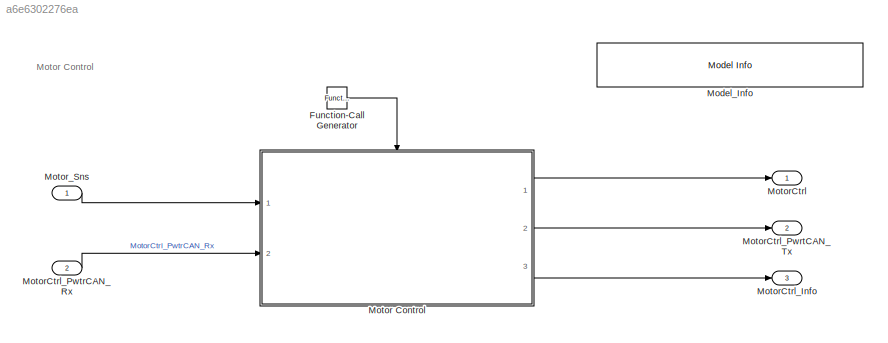
MODEL slx_a6e6302276ea
KIND model
CONFIG AbsTol = auto
CONFIG EnableMultiTasking = on
CONFIG FixedStep = sampletime
CONFIG MaxStep = auto
CONFIG MinStep = auto
CONFIG PreLoadFcn = MotorCtrl_V1_PreLoad
CONFIG RelTol = 1e-3
CONFIG SampleTimeConstraint = Unconstrained
CONFIG Solver = FixedStepDiscrete
CONFIG SolverName = FixedStepDiscrete
CONFIG StartTime = 0.0
CONFIG StopTime = 10.0
BLOCK [Reference] Function-Call Generator  REF=simulink/Ports &
Subsystems/Function-Call
Generator
  AttributesFormatString = <sample_time=%<sample_time>>
  Ports = [0, 1]
  SourceBlock = simulink/Ports &\nSubsystems/Function-Call\nGenerator
  SourceProductBaseCode = SL
  SourceProductName = Simulink
  SourceType = Function-Call Generator
BLOCK [Reference] Model_Info  REF=simulink/Model-Wide
Utilities/Model Info
  Ports = []
  SourceBlock = simulink/Model-Wide\nUtilities/Model Info
  SourceProductBaseCode = SL
  SourceProductName = Simulink
  SourceType = CMBlock
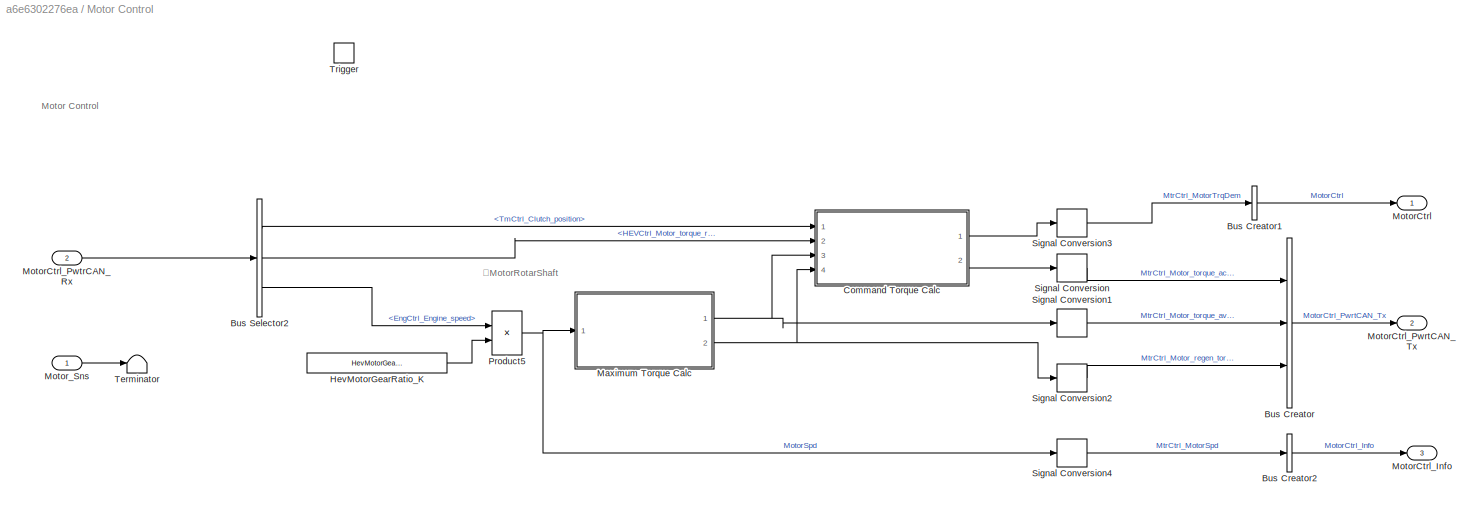
BLOCK [SubSystem] Motor Control
  Ports = [2, 3, 0, 1]
  RequestExecContextInheritance = off
BLOCK [BusCreator] Motor Control/Bus Creator
  AttributesFormatString = %<OutDataTypeStr>
  DisplayOption = bar
  InheritFromInputs = on
  Inputs = 3
  OutDataTypeStr = Bus: MotorCtrl_PwtrCAN_Tx_Bus
  Ports = [3, 1]
BLOCK [BusCreator] Motor Control/Bus Creator1
  AttributesFormatString = %<OutDataTypeStr>
  DisplayOption = bar
  InheritFromInputs = on
  Inputs = 1
  OutDataTypeStr = Bus: MotorCtrl_Bus
  Ports = [1, 1]
BLOCK [BusCreator] Motor Control/Bus Creator2
  AttributesFormatString = %<OutDataTypeStr>
  DisplayOption = bar
  InheritFromInputs = on
  Inputs = 1
  OutDataTypeStr = Bus: MotorCtrl_Info_Bus
  Ports = [1, 1]
BLOCK [BusSelector] Motor Control/Bus Selector2
  OutputAsBus = off
  OutputSignals = TmCtrl_Clutch_position,HEVCtrl_Motor_torque_request,EngCtrl_Engine_speed
  Ports = [1, 3]
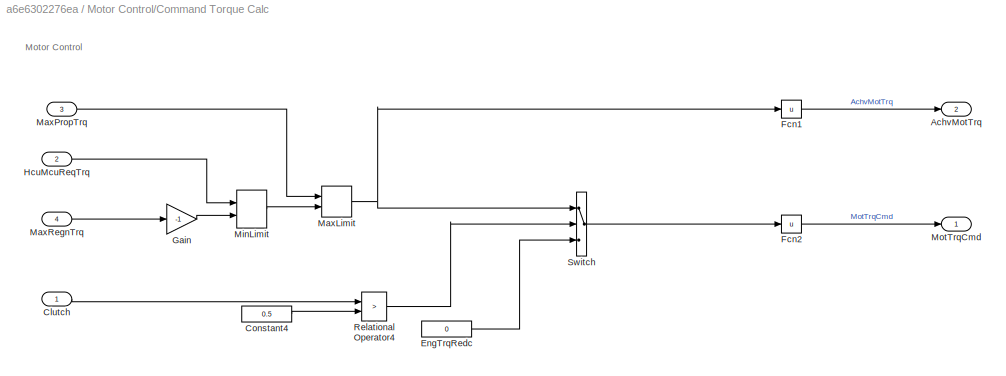
BLOCK [SubSystem] Motor Control/Command Torque Calc
  Ports = [4, 2]
  RequestExecContextInheritance = off
BLOCK [Outport] Motor Control/Command Torque Calc/AchvMotTrq
  IconDisplay = Port number
  Port = 2
BLOCK [Inport] Motor Control/Command Torque Calc/Clutch
  IconDisplay = Port number
BLOCK [Constant] Motor Control/Command Torque Calc/Constant4
  Value = 0.5
BLOCK [Constant] Motor Control/Command Torque Calc/EngTrqRedc
  Value = 0
BLOCK [Fcn] Motor Control/Command Torque Calc/Fcn1
  Expr = u
BLOCK [Fcn] Motor Control/Command Torque Calc/Fcn2
  Expr = u
BLOCK [Gain] Motor Control/Command Torque Calc/Gain
  Gain = -1
  OutDataTypeStr = Inherit: Inherit via internal rule
  ParamDataTypeStr = Inherit: Inherit via internal rule
  SaturateOnIntegerOverflow = off
BLOCK [Inport] Motor Control/Command Torque Calc/HcuMcuReqTrq
  IconDisplay = Port number
  Port = 2
BLOCK [MinMax] Motor Control/Command Torque Calc/MaxLimit
  InputSameDT = off
  Inputs = 2
  Ports = [2, 1]
  SaturateOnIntegerOverflow = off
BLOCK [Inport] Motor Control/Command Torque Calc/MaxPropTrq
  IconDisplay = Port number
  Port = 3
BLOCK [Inport] Motor Control/Command Torque Calc/MaxRegnTrq
  IconDisplay = Port number
  Port = 4
BLOCK [MinMax] Motor Control/Command Torque Calc/MinLimit
  Function = max
  InputSameDT = off
  Inputs = 2
  Ports = [2, 1]
  SaturateOnIntegerOverflow = off
BLOCK [Outport] Motor Control/Command Torque Calc/MotTrqCmd
  IconDisplay = Port number
BLOCK [RelationalOperator] Motor Control/Command Torque Calc/Relational Operator4
  InputSameDT = off
  Operator = >
  OutDataTypeStr = boolean
  Ports = [2, 1]
BLOCK [Switch] Motor Control/Command Torque Calc/Switch
  AttributesFormatString = <%<Criteria>>
  Criteria = u2 ~= 0
  InputSameDT = off
  Threshold = 0.5
BLOCK [Constant] Motor Control/HevMotorGearRatio_K 
  Value = HevMotorGearRatio_K
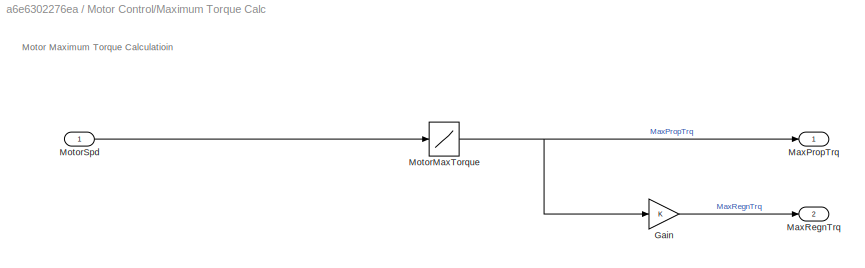
BLOCK [SubSystem] Motor Control/Maximum Torque Calc
  Ports = [1, 2]
  RequestExecContextInheritance = off
BLOCK [Gain] Motor Control/Maximum Torque Calc/Gain
  OutDataTypeStr = Inherit: Inherit via internal rule
  ParamDataTypeStr = Inherit: Inherit via internal rule
  SaturateOnIntegerOverflow = off
BLOCK [Outport] Motor Control/Maximum Torque Calc/MaxPropTrq
  IconDisplay = Port number
BLOCK [Outport] Motor Control/Maximum Torque Calc/MaxRegnTrq
  IconDisplay = Port number
  Port = 2
BLOCK [Lookup] Motor Control/Maximum Torque Calc/MotorMaxTorque
  AttributesFormatString = <input=%<InputValues>>\n<output=%<OutputValues>>
  InputValues = HevMotorMaxTrq_K2x
  LookUpMeth = Interpolation-Use End Values
  Table = HevMotorMaxTrq_K2
BLOCK [Inport] Motor Control/Maximum Torque Calc/MotorSpd
  IconDisplay = Port number
BLOCK [Outport] Motor Control/MotorCtrl
  IconDisplay = Port number
BLOCK [Outport] Motor Control/MotorCtrl_Info
  IconDisplay = Port number
  Port = 3
BLOCK [Outport] Motor Control/MotorCtrl_PwrtCAN_Tx
  IconDisplay = Port number
  Port = 2
BLOCK [Inport] Motor Control/MotorCtrl_PwtrCAN_Rx
  IconDisplay = Port number
  Port = 2
BLOCK [Inport] Motor Control/Motor_Sns
  IconDisplay = Port number
BLOCK [Product] Motor Control/Product5
  InputSameDT = off
  OutDataTypeStr = Inherit: Inherit via internal rule
  Ports = [2, 1]
  SaturateOnIntegerOverflow = off
BLOCK [SignalConversion] Motor Control/Signal Conversion
  OverrideOpt = off
BLOCK [SignalConversion] Motor Control/Signal Conversion1
  OverrideOpt = off
BLOCK [SignalConversion] Motor Control/Signal Conversion2
  OverrideOpt = off
BLOCK [SignalConversion] Motor Control/Signal Conversion3
  OverrideOpt = off
BLOCK [SignalConversion] Motor Control/Signal Conversion4
  OverrideOpt = off
BLOCK [Terminator] Motor Control/Terminator
BLOCK [TriggerPort] Motor Control/Trigger
  PortDimensions = 1
  Ports = []
  StatesWhenEnabling = held
  TriggerType = function-call
  VariantControl = Variant
BLOCK [Outport] MotorCtrl
  AttributesFormatString = <%<OutDataTypeStr>>
  IconDisplay = Port number
  OutDataTypeStr = Bus: MotorCtrl_Bus
BLOCK [Outport] MotorCtrl_Info
  AttributesFormatString = <%<OutDataTypeStr>>
  IconDisplay = Port number
  OutDataTypeStr = Bus: MotorCtrl_Info_Bus
  Port = 3
BLOCK [Outport] MotorCtrl_PwrtCAN_Tx
  AttributesFormatString = <%<OutDataTypeStr>>
  IconDisplay = Port number
  OutDataTypeStr = Bus: MotorCtrl_PwtrCAN_Tx_Bus
  Port = 2
BLOCK [Inport] MotorCtrl_PwtrCAN_Rx
  AttributesFormatString = <%<OutDataTypeStr>>
  IconDisplay = Port number
  OutDataTypeStr = Bus: MotorCtrl_PwtrCAN_Rx_Bus
  Port = 2
BLOCK [Inport] Motor_Sns
  AttributesFormatString = %<OutDataTypeStr>
  IconDisplay = Port number
  OutDataTypeStr = Bus:Motor_sensor_Bus
ANNOTATION (root): Motor Control
ANNOTATION Motor Control: Motor Control
ANNOTATION Motor Control: ＠MotorRotarShaft
ANNOTATION Motor Control/Command Torque Calc: Motor Control
ANNOTATION Motor Control/Maximum Torque Calc: Motor Maximum Torque Calculatioin
LINE Function-Call Generator:1 -> Motor Control:trigger
LINE Motor Control/Bus Creator1:1 -> Motor Control/MotorCtrl:1
LINE Motor Control/Bus Creator2:1 -> Motor Control/MotorCtrl_Info:1
LINE Motor Control/Bus Creator:1 -> Motor Control/MotorCtrl_PwrtCAN_Tx:1
LINE Motor Control/Bus Selector2:1 -> Motor Control/Command Torque Calc:1
LINE Motor Control/Bus Selector2:2 -> Motor Control/Command Torque Calc:2
LINE Motor Control/Bus Selector2:3 -> Motor Control/Product5:1
LINE Motor Control/Command Torque Calc/Clutch:1 -> Motor Control/Command Torque Calc/Relational Operator4:1
LINE Motor Control/Command Torque Calc/Constant4:1 -> Motor Control/Command Torque Calc/Relational Operator4:2
LINE Motor Control/Command Torque Calc/EngTrqRedc:1 -> Motor Control/Command Torque Calc/Switch:3
LINE Motor Control/Command Torque Calc/Fcn1:1 -> Motor Control/Command Torque Calc/AchvMotTrq:1
LINE Motor Control/Command Torque Calc/Fcn2:1 -> Motor Control/Command Torque Calc/MotTrqCmd:1
LINE Motor Control/Command Torque Calc/Gain:1 -> Motor Control/Command Torque Calc/MinLimit:2
LINE Motor Control/Command Torque Calc/HcuMcuReqTrq:1 -> Motor Control/Command Torque Calc/MinLimit:1
NET Motor Control/Command Torque Calc/MaxLimit:1 -> Motor Control/Command Torque Calc/Fcn1:1, Motor Control/Command Torque Calc/Switch:1
LINE Motor Control/Command Torque Calc/MaxPropTrq:1 -> Motor Control/Command Torque Calc/MaxLimit:1
LINE Motor Control/Command Torque Calc/MaxRegnTrq:1 -> Motor Control/Command Torque Calc/Gain:1
LINE Motor Control/Command Torque Calc/MinLimit:1 -> Motor Control/Command Torque Calc/MaxLimit:2
LINE Motor Control/Command Torque Calc/Relational Operator4:1 -> Motor Control/Command Torque Calc/Switch:2
LINE Motor Control/Command Torque Calc/Switch:1 -> Motor Control/Command Torque Calc/Fcn2:1
LINE Motor Control/Command Torque Calc:1 -> Motor Control/Signal Conversion3:1
LINE Motor Control/Command Torque Calc:2 -> Motor Control/Signal Conversion:1
LINE Motor Control/HevMotorGearRatio_K :1 -> Motor Control/Product5:2
LINE Motor Control/Maximum Torque Calc/Gain:1 -> Motor Control/Maximum Torque Calc/MaxRegnTrq:1
NET Motor Control/Maximum Torque Calc/MotorMaxTorque:1 -> Motor Control/Maximum Torque Calc/Gain:1, Motor Control/Maximum Torque Calc/MaxPropTrq:1
LINE Motor Control/Maximum Torque Calc/MotorSpd:1 -> Motor Control/Maximum Torque Calc/MotorMaxTorque:1
NET Motor Control/Maximum Torque Calc:1 -> Motor Control/Command Torque Calc:3, Motor Control/Signal Conversion1:1
NET Motor Control/Maximum Torque Calc:2 -> Motor Control/Command Torque Calc:4, Motor Control/Signal Conversion2:1
LINE Motor Control/MotorCtrl_PwtrCAN_Rx:1 -> Motor Control/Bus Selector2:1
LINE Motor Control/Motor_Sns:1 -> Motor Control/Terminator:1
NET Motor Control/Product5:1 -> Motor Control/Maximum Torque Calc:1, Motor Control/Signal Conversion4:1
LINE Motor Control/Signal Conversion1:1 -> Motor Control/Bus Creator:2
LINE Motor Control/Signal Conversion2:1 -> Motor Control/Bus Creator:3
LINE Motor Control/Signal Conversion3:1 -> Motor Control/Bus Creator1:1
LINE Motor Control/Signal Conversion4:1 -> Motor Control/Bus Creator2:1
LINE Motor Control/Signal Conversion:1 -> Motor Control/Bus Creator:1
LINE Motor Control:1 -> MotorCtrl:1
LINE Motor Control:2 -> MotorCtrl_PwrtCAN_Tx:1
LINE Motor Control:3 -> MotorCtrl_Info:1
LINE MotorCtrl_PwtrCAN_Rx:1 -> Motor Control:2
LINE Motor_Sns:1 -> Motor Control:1
note: NET lines group one-source signal fan-out (src -> all destinations, sorted); 1:1 wires keep LINE
